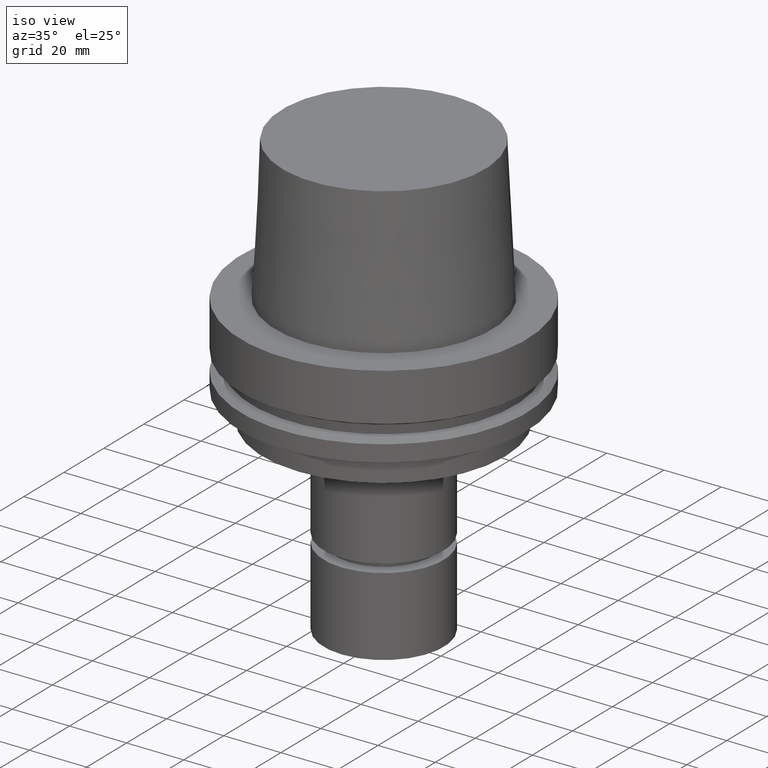
[diagram: clean part render]
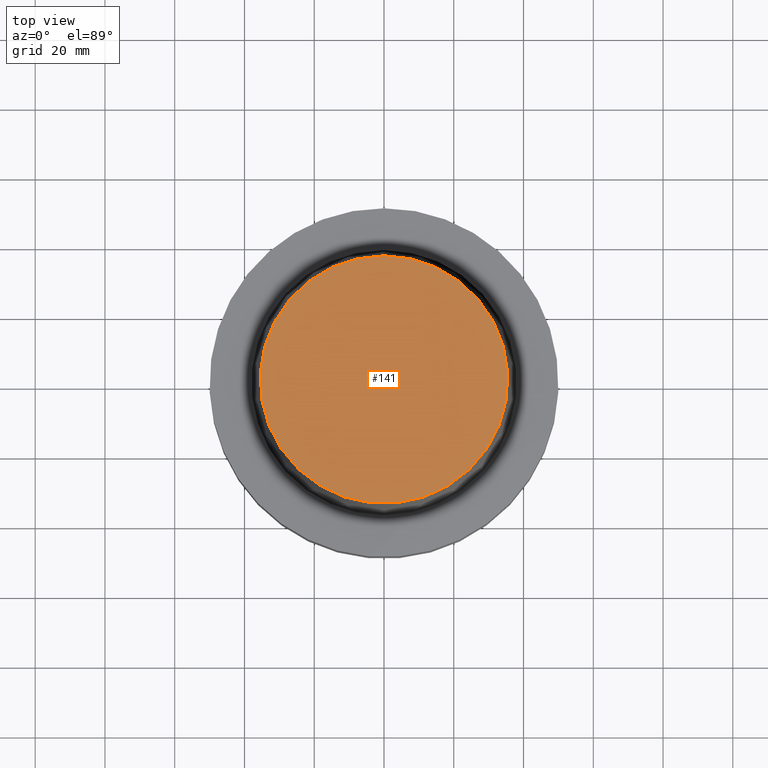
[diagram: tour spotlight — one face highlighted and labeled with its STEP entity id]
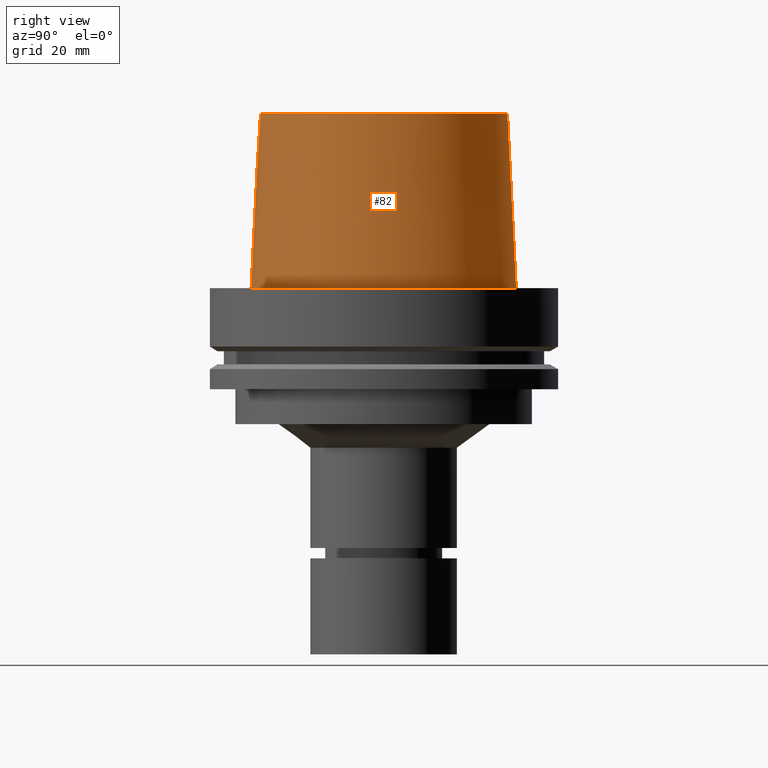
[diagram: tour spotlight — one face highlighted and labeled with its STEP entity id]
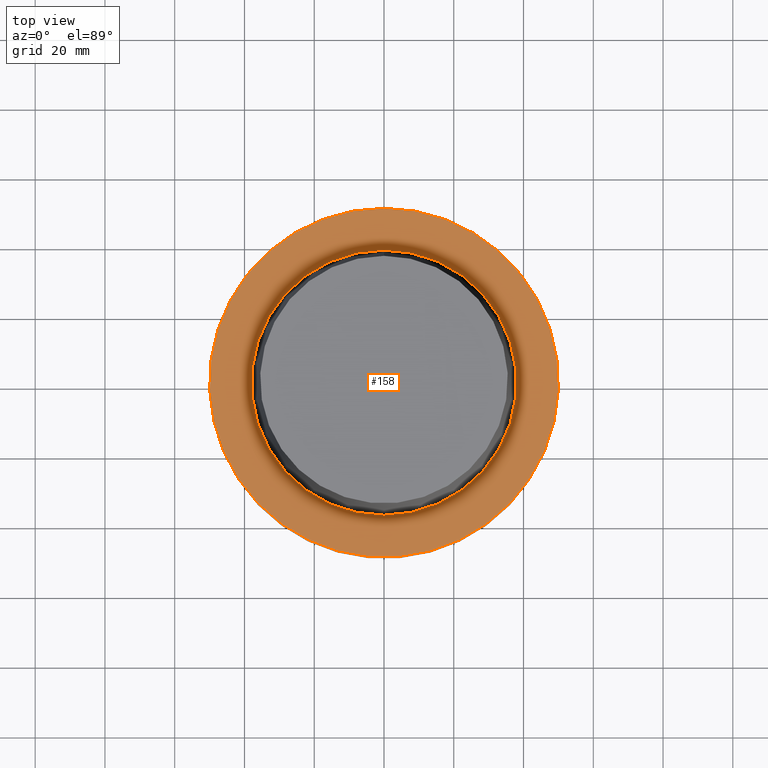
[diagram: tour spotlight — one face highlighted and labeled with its STEP entity id]
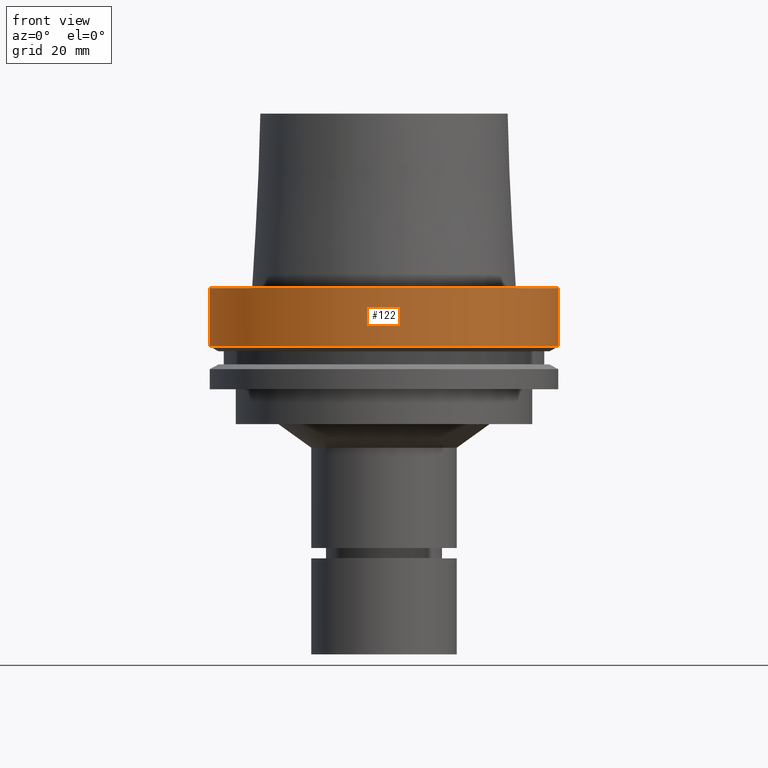
[diagram: tour spotlight — one face highlighted and labeled with its STEP entity id]
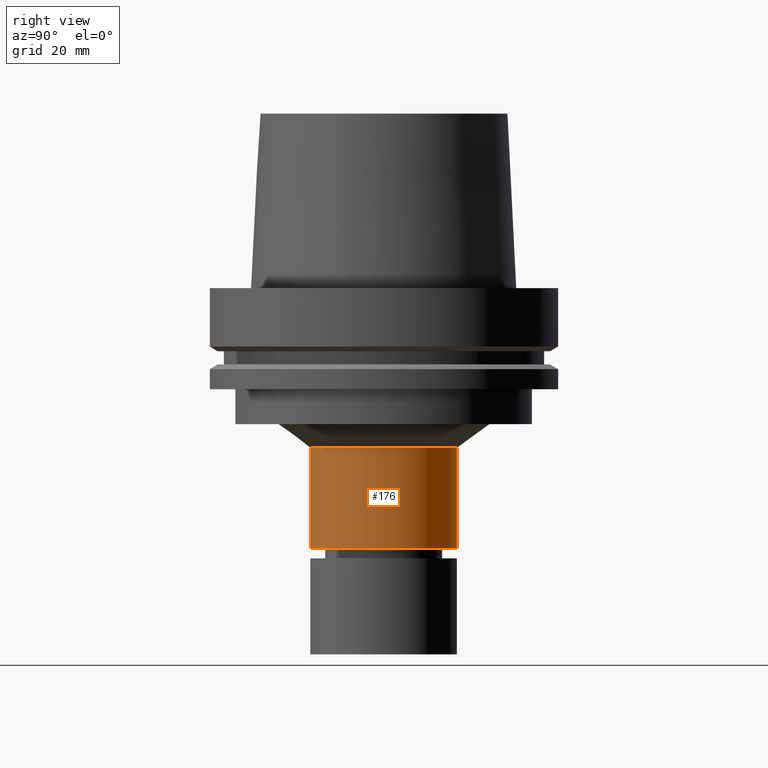
[diagram: tour spotlight — one face highlighted and labeled with its STEP entity id]
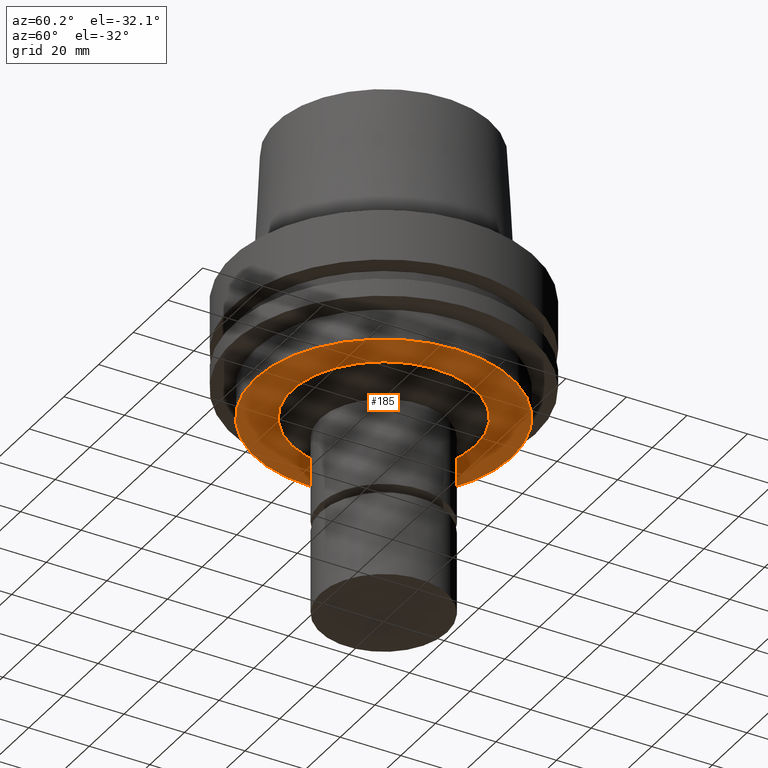
[diagram: tour spotlight — one face highlighted and labeled with its STEP entity id]
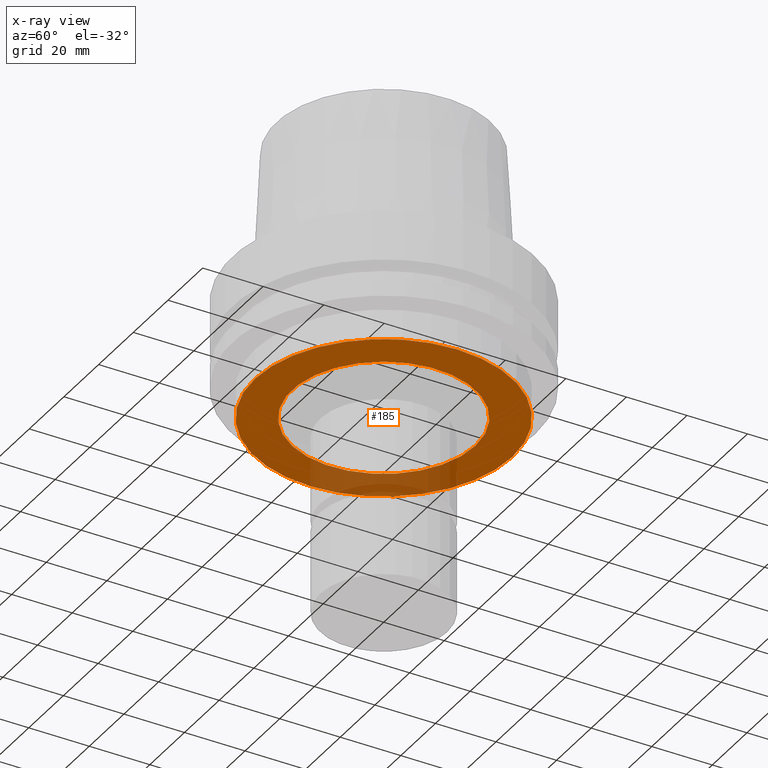
[diagram: x-ray of the same camera — body ghosted, this tour face saturated]
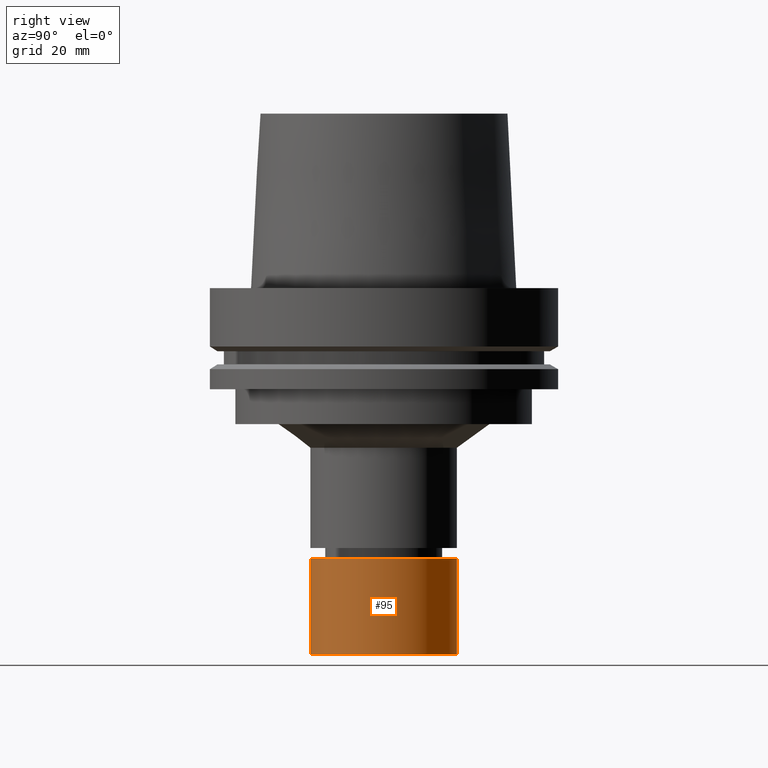
[diagram: tour spotlight — one face highlighted and labeled with its STEP entity id]
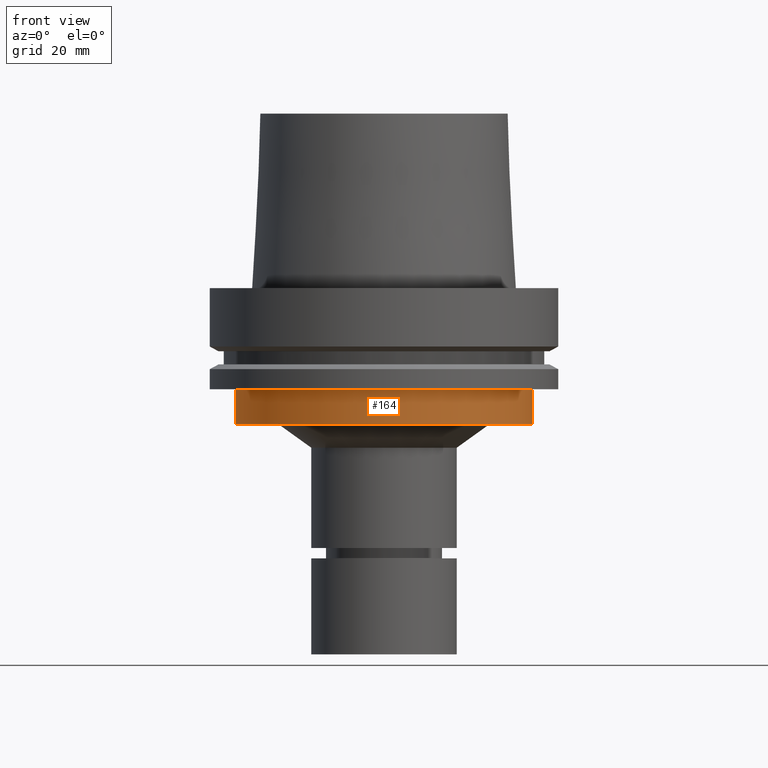
[diagram: tour spotlight — one face highlighted and labeled with its STEP entity id]
A machine part: a face-by-face anatomy tour. The part has 24 B-rep faces; the first image is the clean iso view, then the 8 largest visible faces are spotlighted one at a time (largest first), each with its STEP entity span.

Face 1 — top view, entity #141. In plain terms, the highlighted planar face has unit normal (-0, -0, 1).
Definition (entity closure, byte-faithful):
#141=ADVANCED_FACE('Unnamed[1]',(#315),#316,.T.);
#193=EDGE_CURVE('Unnamed[1]',#396,#396,#397,.T.);
#315=FACE_OUTER_BOUND('',#535,.T.);
#316=PLANE('',#536);
#396=VERTEX_POINT('',#638);
#397=CIRCLE('',#639,35.5000000015618);
#535=EDGE_LOOP('',(#757));
#536=AXIS2_PLACEMENT_3D('',#758,#759,#760);
#638=CARTESIAN_POINT('',(-3.06161699786838E-015,35.5000000015618,50.0));
#639=AXIS2_PLACEMENT_3D('',#847,#848,#849);
#757=ORIENTED_EDGE('',*,*,#193,.F.);
#758=CARTESIAN_POINT('',(-3.06161699786838E-015,17.7500000007809,50.0));
#759=DIRECTION('',(-6.12323399573677E-017,-1.22464679914735E-016,1.0));
#760=DIRECTION('',(1.23259516440783E-032,-1.0,-1.22464679914735E-016));
#847=CARTESIAN_POINT('',(-3.06161699786838E-015,-6.12323399573676E-015,50.0));
#848=DIRECTION('',(6.12323399573677E-017,1.22464679914735E-016,-1.0));
#849=DIRECTION('',(-1.23259516440783E-032,1.0,1.22464679914735E-016));

Face 2 — right view, entity #82. In plain terms, the highlighted conical surface has half-angle 2.862 deg.
Definition (entity closure, byte-faithful):
#82=ADVANCED_FACE('Unnamed[1]',(#223,#224),#225,.T.);
#151=EDGE_CURVE('Unnamed[1]',#330,#330,#331,.T.);
#193=EDGE_CURVE('Unnamed[1]',#396,#396,#397,.T.);
#223=FACE_BOUND('',#423,.T.);
#224=FACE_BOUND('',#424,.T.);
#225=CONICAL_SURFACE('',#425,36.7500000007484,0.0499583956894843);
#330=VERTEX_POINT('',#555);
#331=CIRCLE('',#556,37.9999999999349);
#396=VERTEX_POINT('',#638);
#397=CIRCLE('',#639,35.5000000015618);
#423=EDGE_LOOP('',(#656));
#424=EDGE_LOOP('',(#657));
#425=AXIS2_PLACEMENT_3D('',#658,#659,#660);
#555=CARTESIAN_POINT('',(-3.3636548776863E-032,37.9999999999349,-2.44634216324803E-015));
#556=AXIS2_PLACEMENT_3D('',#773,#774,#775);
#638=CARTESIAN_POINT('',(-3.06161699786838E-015,35.5000000015618,50.0));
#639=AXIS2_PLACEMENT_3D('',#847,#848,#849);
#656=ORIENTED_EDGE('',*,*,#151,.F.);
#657=ORIENTED_EDGE('',*,*,#193,.T.);
#658=CARTESIAN_POINT('',(-1.53080849893419E-015,-3.06161699786838E-015,25.0));
#659=DIRECTION('',(6.12323399573676E-017,1.22464679914735E-016,-1.0));
#660=DIRECTION('',(-1.23259516440783E-032,1.0,1.22464679914735E-016));
#773=CARTESIAN_POINT('',(0.0,0.0,0.0));
#774=DIRECTION('',(6.12323399573677E-017,1.22464679914735E-016,-1.0));
#775=DIRECTION('',(-1.23259516440783E-032,1.0,1.22464679914735E-016));
#847=CARTESIAN_POINT('',(-3.06161699786838E-015,-6.12323399573676E-015,50.0));
#848=DIRECTION('',(6.12323399573677E-017,1.22464679914735E-016,-1.0));
#849=DIRECTION('',(-1.23259516440783E-032,1.0,1.22464679914735E-016));

Face 3 — top view, entity #158. In plain terms, the highlighted planar face has unit normal (-0, -0, 1).
Definition (entity closure, byte-faithful):
#119=EDGE_CURVE('Unnamed[1]',#282,#282,#283,.T.);
#151=EDGE_CURVE('Unnamed[1]',#330,#330,#331,.T.);
#158=ADVANCED_FACE('Unnamed[1]',(#340,#341),#342,.T.);
#282=VERTEX_POINT('',#495);
#283=CIRCLE('',#496,50.0);
#330=VERTEX_POINT('',#555);
#331=CIRCLE('',#556,37.9999999999349);
#340=FACE_OUTER_BOUND('',#568,.T.);
#341=FACE_BOUND('',#569,.T.);
#342=PLANE('',#570);
#495=CARTESIAN_POINT('',(-1.81547968506605E-031,50.0,-9.76766004263236E-016));
#496=AXIS2_PLACEMENT_3D('',#722,#723,#724);
#555=CARTESIAN_POINT('',(-3.3636548776863E-032,37.9999999999349,-2.44634216324803E-015));
#556=AXIS2_PLACEMENT_3D('',#773,#774,#775);
#568=EDGE_LOOP('',(#783));
#569=EDGE_LOOP('',(#784));
#570=AXIS2_PLACEMENT_3D('',#785,#786,#787);
#722=CARTESIAN_POINT('',(0.0,0.0,0.0));
#723=DIRECTION('',(6.12323399573677E-017,1.22464679914735E-016,-1.0));
#724=DIRECTION('',(-1.23259516440783E-032,1.0,1.22464679914735E-016));
#773=CARTESIAN_POINT('',(0.0,0.0,0.0));
#774=DIRECTION('',(6.12323399573677E-017,1.22464679914735E-016,-1.0));
#775=DIRECTION('',(-1.23259516440783E-032,1.0,1.22464679914735E-016));
#783=ORIENTED_EDGE('',*,*,#119,.F.);
#784=ORIENTED_EDGE('',*,*,#151,.T.);
#785=CARTESIAN_POINT('',(-1.07592258641734E-031,43.9999999999675,-1.71155408375563E-015));
#786=DIRECTION('',(-6.12323399573677E-017,-1.22464679914735E-016,1.0));
#787=DIRECTION('',(1.23259516440783E-032,-1.0,-1.22464679914735E-016));

Face 4 — front view, entity #122. In plain terms, the highlighted cylindrical surface (bore or boss wall) has radius 50 mm, axis along (0, 0, -1).
Definition (entity closure, byte-faithful):
#119=EDGE_CURVE('Unnamed[1]',#282,#282,#283,.T.);
#122=ADVANCED_FACE('Unnamed[1]',(#286,#287),#288,.T.);
#149=EDGE_CURVE('Unnamed[1]',#327,#327,#328,.T.);
#282=VERTEX_POINT('',#495);
#283=CIRCLE('',#496,50.0);
#286=FACE_BOUND('',#500,.T.);
#287=FACE_BOUND('',#501,.T.);
#288=CYLINDRICAL_SURFACE('',#502,50.0);
#327=VERTEX_POINT('',#551);
#328=CIRCLE('',#552,50.0);
#495=CARTESIAN_POINT('',(-1.81547968506605E-031,50.0,-9.76766004263236E-016));
#496=AXIS2_PLACEMENT_3D('',#722,#723,#724);
#500=EDGE_LOOP('',(#726));
#501=EDGE_LOOP('',(#727));
#502=AXIS2_PLACEMENT_3D('',#728,#729,#730);
#551=CARTESIAN_POINT('',(1.0257889421431E-015,50.0,-16.75240474));
#552=AXIS2_PLACEMENT_3D('',#770,#771,#772);
#722=CARTESIAN_POINT('',(0.0,0.0,0.0));
#723=DIRECTION('',(6.12323399573677E-017,1.22464679914735E-016,-1.0));
#724=DIRECTION('',(-1.23259516440783E-032,1.0,1.22464679914735E-016));
#726=ORIENTED_EDGE('',*,*,#149,.F.);
#727=ORIENTED_EDGE('',*,*,#119,.T.);
#728=CARTESIAN_POINT('',(5.12894471071548E-016,1.0257889421431E-015,-8.37620236999999));
#729=DIRECTION('',(6.12323399573677E-017,1.22464679914735E-016,-1.0));
#730=DIRECTION('',(-1.23259516440783E-032,1.0,1.22464679914735E-016));
#770=CARTESIAN_POINT('',(1.0257889421431E-015,2.05157788428619E-015,-16.75240474));
#771=DIRECTION('',(6.12323399573677E-017,1.22464679914735E-016,-1.0));
#772=DIRECTION('',(-1.23259516440783E-032,1.0,1.22464679914735E-016));

Face 5 — right view, entity #176. In plain terms, the highlighted cylindrical surface (bore or boss wall) has radius 21 mm, axis along (0, 0, -1).
Definition (entity closure, byte-faithful):
#153=EDGE_CURVE('Unnamed[1]',#333,#333,#334,.T.);
#155=EDGE_CURVE('Unnamed[1]',#336,#336,#337,.T.);
#176=ADVANCED_FACE('Unnamed[1]',(#369,#370),#371,.T.);
#333=VERTEX_POINT('',#559);
#334=CIRCLE('',#560,21.0);
#336=VERTEX_POINT('',#563);
#337=CIRCLE('',#564,21.0);
#369=FACE_BOUND('',#604,.T.);
#370=FACE_BOUND('',#605,.T.);
#371=CYLINDRICAL_SURFACE('',#606,21.0);
#559=CARTESIAN_POINT('',(4.56180932682388E-015,21.0,-74.4999999999999));
#560=AXIS2_PLACEMENT_3D('',#776,#777,#778);
#563=CARTESIAN_POINT('',(2.80227603553221E-015,21.0,-45.76464067));
#564=AXIS2_PLACEMENT_3D('',#779,#780,#781);
#604=EDGE_LOOP('',(#816));
#605=EDGE_LOOP('',(#817));
#606=AXIS2_PLACEMENT_3D('',#818,#819,#820);
#776=CARTESIAN_POINT('',(4.56180932682388E-015,9.12361865364777E-015,-74.4999999999999));
#777=DIRECTION('',(6.12323399573677E-017,1.22464679914735E-016,-1.0));
#778=DIRECTION('',(-1.23259516440783E-032,1.0,1.22464679914735E-016));
#779=CARTESIAN_POINT('',(2.80227603553221E-015,5.60455207106442E-015,-45.76464067));
#780=DIRECTION('',(6.12323399573677E-017,1.22464679914735E-016,-1.0));
#781=DIRECTION('',(-1.23259516440783E-032,1.0,1.22464679914735E-016));
#816=ORIENTED_EDGE('',*,*,#153,.F.);
#817=ORIENTED_EDGE('',*,*,#155,.T.);
#818=CARTESIAN_POINT('',(3.68204268117805E-015,7.3640853623561E-015,-60.1323203349999));
#819=DIRECTION('',(6.12323399573677E-017,1.22464679914735E-016,-1.0));
#820=DIRECTION('',(-1.23259516440783E-032,1.0,1.22464679914735E-016));

Face 6 — auxiliary view, entity #185. An x-ray twin of the same camera follows (body ghosted, this face saturated) — the face is partly hidden behind the body. In plain terms, the highlighted planar face has unit normal (0, 0, -1).
Definition (entity closure, byte-faithful):
#97=EDGE_CURVE('Unnamed[1]',#246,#246,#247,.T.);
#173=EDGE_CURVE('Unnamed[1]',#365,#365,#366,.T.);
#185=ADVANCED_FACE('Unnamed[1]',(#383,#384),#385,.T.);
#246=VERTEX_POINT('',#451);
#247=CIRCLE('',#452,42.5);
#365=VERTEX_POINT('',#599);
#366=CIRCLE('',#600,30.3193294456163);
#383=FACE_BOUND('',#621,.T.);
#384=FACE_OUTER_BOUND('',#622,.T.);
#385=PLANE('',#623);
#451=CARTESIAN_POINT('',(2.38806125833734E-015,42.5,-39.0));
#452=AXIS2_PLACEMENT_3D('',#680,#681,#682);
#599=CARTESIAN_POINT('',(2.38806125833734E-015,30.3193294456163,-39.0));
#600=AXIS2_PLACEMENT_3D('',#812,#813,#814);
#621=EDGE_LOOP('',(#833));
#622=EDGE_LOOP('',(#834));
#623=AXIS2_PLACEMENT_3D('',#835,#836,#837);
#680=CARTESIAN_POINT('',(2.38806125833734E-015,4.77612251667468E-015,-39.0));
#681=DIRECTION('',(6.12323399573677E-017,1.22464679914735E-016,-1.0));
#682=DIRECTION('',(-1.23259516440783E-032,1.0,1.22464679914735E-016));
#812=CARTESIAN_POINT('',(2.38806125833734E-015,4.77612251667468E-015,-39.0));
#813=DIRECTION('',(6.12323399573677E-017,1.22464679914735E-016,-1.0));
#814=DIRECTION('',(-1.23259516440783E-032,1.0,1.22464679914735E-016));
#833=ORIENTED_EDGE('',*,*,#173,.F.);
#834=ORIENTED_EDGE('',*,*,#97,.T.);
#835=CARTESIAN_POINT('',(2.38806125833734E-015,36.4096647228082,-39.0));
#836=DIRECTION('',(6.12323399573677E-017,1.22464679914735E-016,-1.0));
#837=DIRECTION('',(-1.23259516440783E-032,1.0,1.22464679914735E-016));

Face 7 — right view, entity #95. In plain terms, the highlighted cylindrical surface (bore or boss wall) has radius 21 mm, axis along (0, 0, -1).
Definition (entity closure, byte-faithful):
#87=EDGE_CURVE('Unnamed[1]',#232,#232,#233,.T.);
#95=ADVANCED_FACE('Unnamed[1]',(#242,#243),#244,.T.);
#147=EDGE_CURVE('Unnamed[1]',#324,#324,#325,.T.);
#232=VERTEX_POINT('',#434);
#233=CIRCLE('',#435,21.0);
#242=FACE_BOUND('',#446,.T.);
#243=FACE_BOUND('',#447,.T.);
#244=CYLINDRICAL_SURFACE('',#448,21.0);
#324=VERTEX_POINT('',#547);
#325=CIRCLE('',#548,21.0);
#434=CARTESIAN_POINT('',(6.4293956955236E-015,21.0,-105.0));
#435=AXIS2_PLACEMENT_3D('',#667,#668,#669);
#446=EDGE_LOOP('',(#675));
#447=EDGE_LOOP('',(#676));
#448=AXIS2_PLACEMENT_3D('',#677,#678,#679);
#547=CARTESIAN_POINT('',(4.74550634669599E-015,21.0,-77.5));
#548=AXIS2_PLACEMENT_3D('',#767,#768,#769);
#667=CARTESIAN_POINT('',(6.4293956955236E-015,1.28587913910472E-014,-105.0));
#668=DIRECTION('',(6.12323399573677E-017,1.22464679914735E-016,-1.0));
#669=DIRECTION('',(-1.23259516440783E-032,1.0,1.22464679914735E-016));
#675=ORIENTED_EDGE('',*,*,#87,.F.);
#676=ORIENTED_EDGE('',*,*,#147,.T.);
#677=CARTESIAN_POINT('',(5.5874510211098E-015,1.11749020422196E-014,-91.25));
#678=DIRECTION('',(6.12323399573677E-017,1.22464679914735E-016,-1.0));
#679=DIRECTION('',(-1.23259516440783E-032,1.0,1.22464679914735E-016));
#767=CARTESIAN_POINT('',(4.74550634669599E-015,9.49101269339199E-015,-77.5));
#768=DIRECTION('',(6.12323399573677E-017,1.22464679914735E-016,-1.0));
#769=DIRECTION('',(-1.23259516440783E-032,1.0,1.22464679914735E-016));

Face 8 — front view, entity #164. In plain terms, the highlighted cylindrical surface (bore or boss wall) has radius 42.5 mm, axis along (0, 0, -1).
Definition (entity closure, byte-faithful):
#97=EDGE_CURVE('Unnamed[1]',#246,#246,#247,.T.);
#130=EDGE_CURVE('Unnamed[1]',#300,#300,#301,.T.);
#164=ADVANCED_FACE('Unnamed[1]',(#350,#351),#352,.T.);
#246=VERTEX_POINT('',#451);
#247=CIRCLE('',#452,42.5);
#300=VERTEX_POINT('',#517);
#301=CIRCLE('',#518,42.5);
#350=FACE_BOUND('',#580,.T.);
#351=FACE_BOUND('',#581,.T.);
#352=CYLINDRICAL_SURFACE('',#582,42.5);
#451=CARTESIAN_POINT('',(2.38806125833734E-015,42.5,-39.0));
#452=AXIS2_PLACEMENT_3D('',#680,#681,#682);
#517=CARTESIAN_POINT('',(1.77573785876366E-015,42.5,-29.0));
#518=AXIS2_PLACEMENT_3D('',#743,#744,#745);
#580=EDGE_LOOP('',(#795));
#581=EDGE_LOOP('',(#796));
#582=AXIS2_PLACEMENT_3D('',#797,#798,#799);
#680=CARTESIAN_POINT('',(2.38806125833734E-015,4.77612251667468E-015,-39.0));
#681=DIRECTION('',(6.12323399573677E-017,1.22464679914735E-016,-1.0));
#682=DIRECTION('',(-1.23259516440783E-032,1.0,1.22464679914735E-016));
#743=CARTESIAN_POINT('',(1.77573785876366E-015,3.55147571752733E-015,-29.0));
#744=DIRECTION('',(6.12323399573677E-017,1.22464679914735E-016,-1.0));
#745=DIRECTION('',(-1.23259516440783E-032,1.0,1.22464679914735E-016));
#795=ORIENTED_EDGE('',*,*,#97,.F.);
#796=ORIENTED_EDGE('',*,*,#130,.T.);
#797=CARTESIAN_POINT('',(2.0818995585505E-015,4.163799117101E-015,-34.0));
#798=DIRECTION('',(6.12323399573677E-017,1.22464679914735E-016,-1.0));
#799=DIRECTION('',(-1.23259516440783E-032,1.0,1.22464679914735E-016));